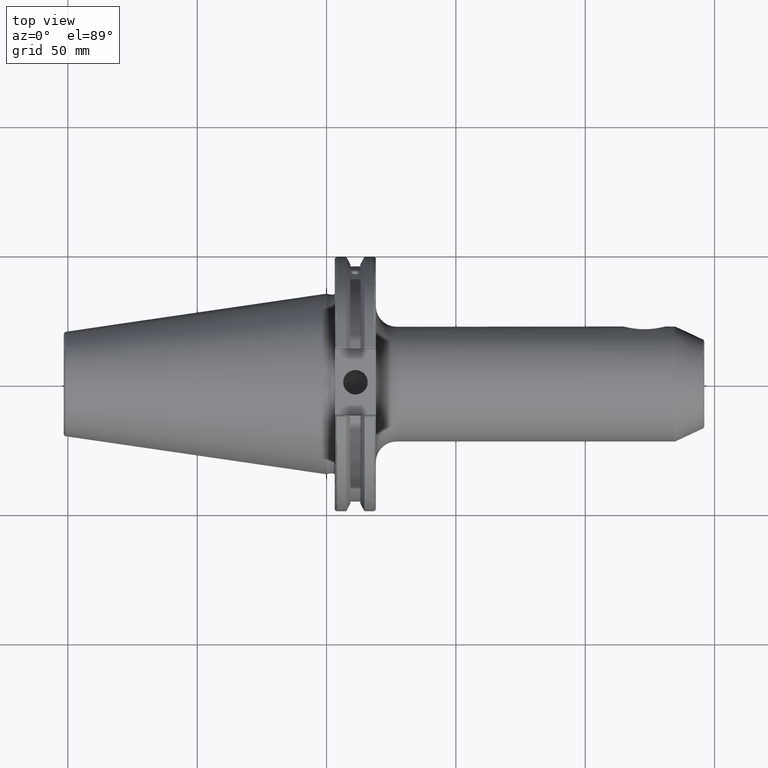
[diagram: clean part render]
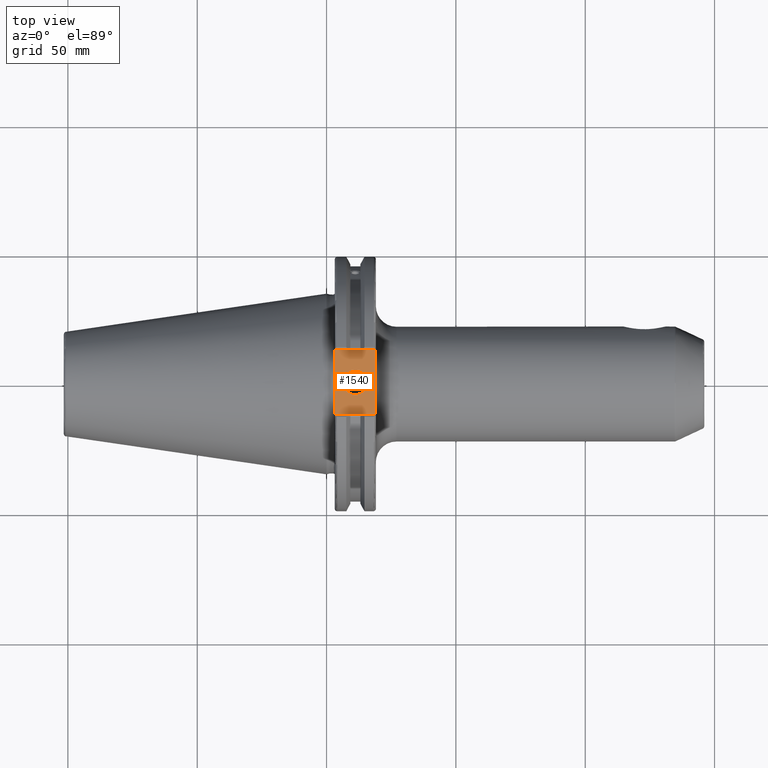
[diagram: same view with one face highlighted and labeled with its STEP entity id]
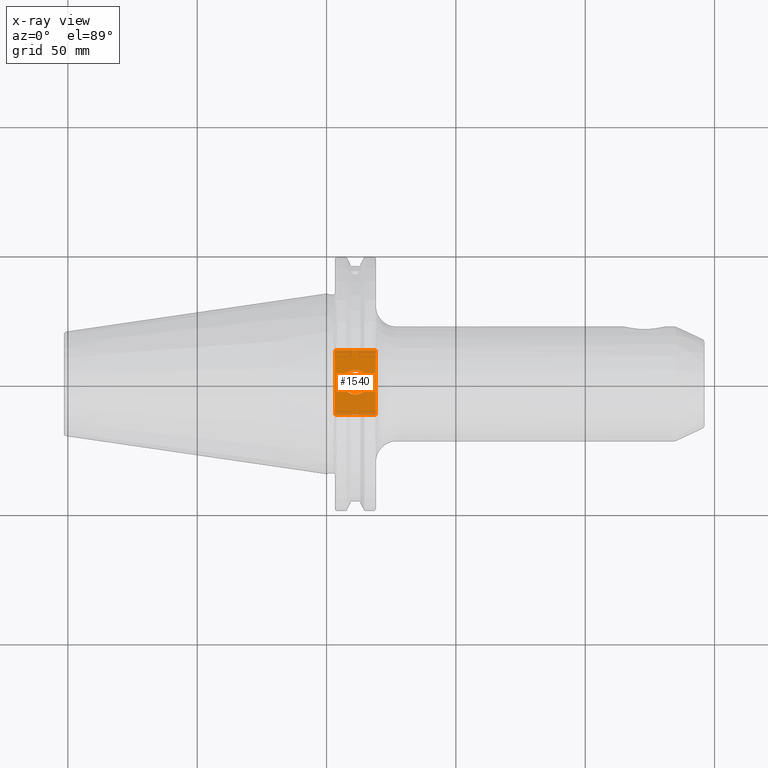
[diagram: x-ray of the same camera — body ghosted, the highlighted face saturated]
A machine part, top view. The second image highlights one B-rep face of the part: STEP entity #1540.
The next image is the same camera in x-ray: the body ghosted, the highlighted face saturated — about 0% of this face is hidden behind the body in this view.
In plain terms, the highlighted planar face has unit normal (0, 0, 1).
Its self-contained STEP definition (entity closure, byte-faithful):
#61=FACE_BOUND('',#347,.T.);
#95=PLANE('',#1720);
#242=FACE_OUTER_BOUND('',#346,.T.);
#346=EDGE_LOOP('',(#1408,#1409,#1410,#1411));
#347=EDGE_LOOP('',(#1412));
#364=LINE('',#2278,#456);
#405=LINE('',#2870,#497);
#436=LINE('',#3105,#528);
#438=LINE('',#3108,#530);
#456=VECTOR('',#1781,10.);
#497=VECTOR('',#1972,10.);
#528=VECTOR('',#2069,10.);
#530=VECTOR('',#2073,10.);
#607=CIRCLE('',#1710,4.7625);
#634=VERTEX_POINT('',#2275);
#635=VERTEX_POINT('',#2277);
#720=VERTEX_POINT('',#2867);
#721=VERTEX_POINT('',#2869);
#767=VERTEX_POINT('',#3135);
#792=EDGE_CURVE('',#634,#635,#364,.T.);
#904=EDGE_CURVE('',#720,#721,#405,.T.);
#970=EDGE_CURVE('',#635,#720,#436,.T.);
#972=EDGE_CURVE('',#721,#634,#438,.T.);
#983=EDGE_CURVE('',#767,#767,#607,.T.);
#1408=ORIENTED_EDGE('',*,*,#970,.F.);
#1409=ORIENTED_EDGE('',*,*,#792,.F.);
#1410=ORIENTED_EDGE('',*,*,#972,.F.);
#1411=ORIENTED_EDGE('',*,*,#904,.F.);
#1412=ORIENTED_EDGE('',*,*,#983,.T.);
#1540=ADVANCED_FACE('',(#242,#61),#95,.T.);
#1710=AXIS2_PLACEMENT_3D('',#3136,#2099,#2100);
#1720=AXIS2_PLACEMENT_3D('',#3147,#2120,#2121);
#1781=DIRECTION('',(0.,-1.,0.));
#1972=DIRECTION('',(0.,1.,0.));
#2069=DIRECTION('',(-1.,1.31581988103722E-16,0.));
#2073=DIRECTION('',(1.,0.,0.));
#2099=DIRECTION('center_axis',(0.,0.,-1.));
#2100=DIRECTION('ref_axis',(1.,0.,0.));
#2120=DIRECTION('center_axis',(0.,0.,1.));
#2121=DIRECTION('ref_axis',(1.,0.,0.));
#2275=CARTESIAN_POINT('',(19.05,12.45,37.719));
#2277=CARTESIAN_POINT('',(19.05,-12.45,37.719));
#2278=CARTESIAN_POINT('',(19.05,0.,37.719));
#2867=CARTESIAN_POINT('',(3.175,-12.45,37.719));
#2869=CARTESIAN_POINT('',(3.175,12.45,37.719));
#2870=CARTESIAN_POINT('',(3.175,24.60625,37.719));
#3105=CARTESIAN_POINT('',(10.63125,-12.45,37.719));
#3108=CARTESIAN_POINT('',(19.06875,12.45,37.719));
#3135=CARTESIAN_POINT('',(6.3716,-5.83238038093927E-16,37.719));
#3136=CARTESIAN_POINT('Origin',(11.1341,0.,37.719));
#3147=CARTESIAN_POINT('Origin',(18.0875,0.,37.719));